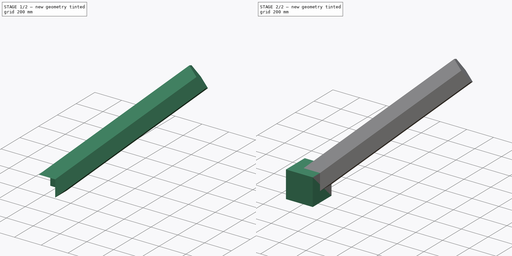
[diagram: build sequence overview — one tinted view per stage of 2, left to right]
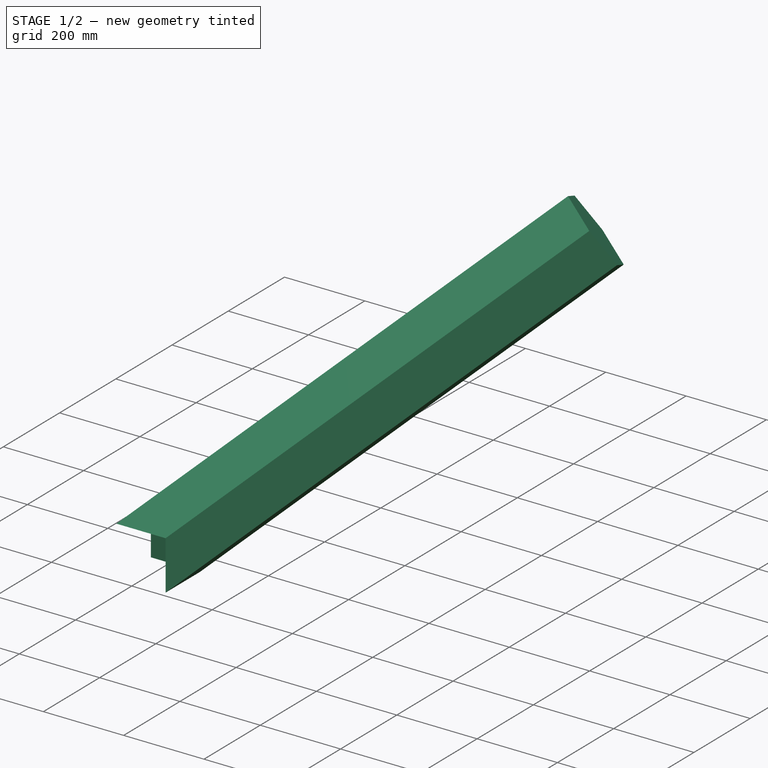
[diagram: stage 1 of 2 — iso view after this stage's code; geometry added in this stage tinted green]
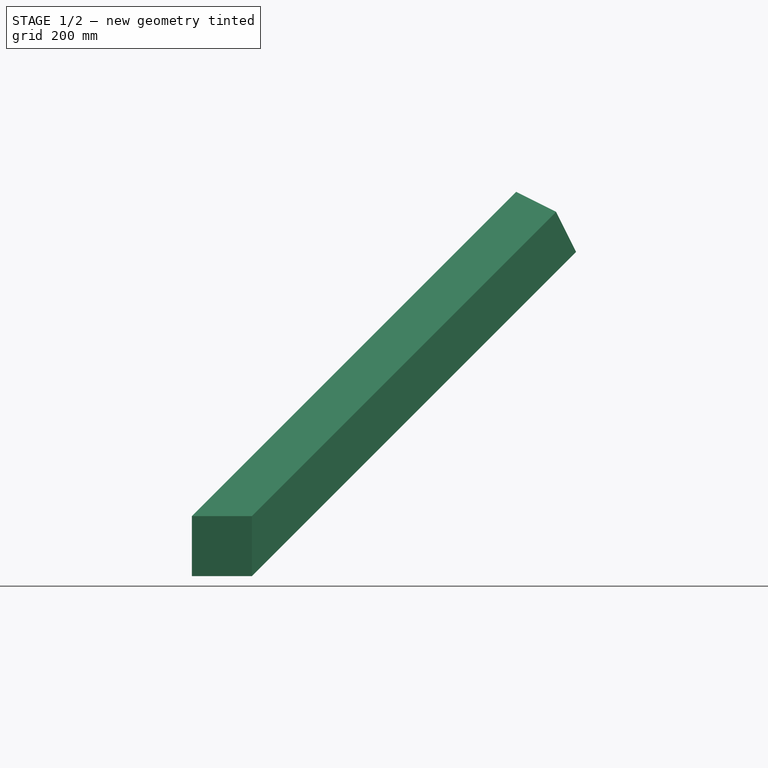
[diagram: stage 1 of 2 — front view after this stage's code; geometry added in this stage tinted green]
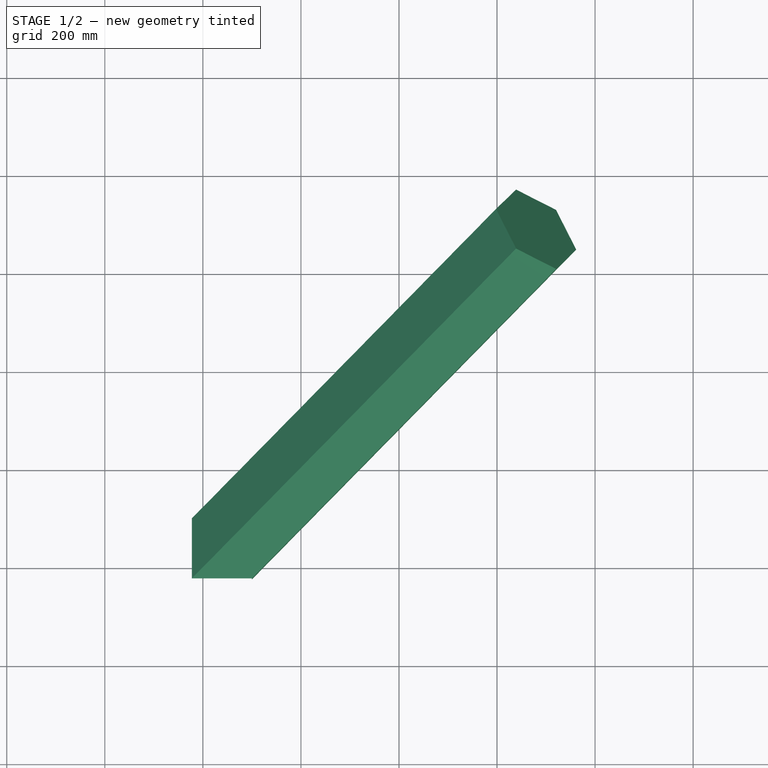
[diagram: stage 1 of 2 — top view after this stage's code; geometry added in this stage tinted green]
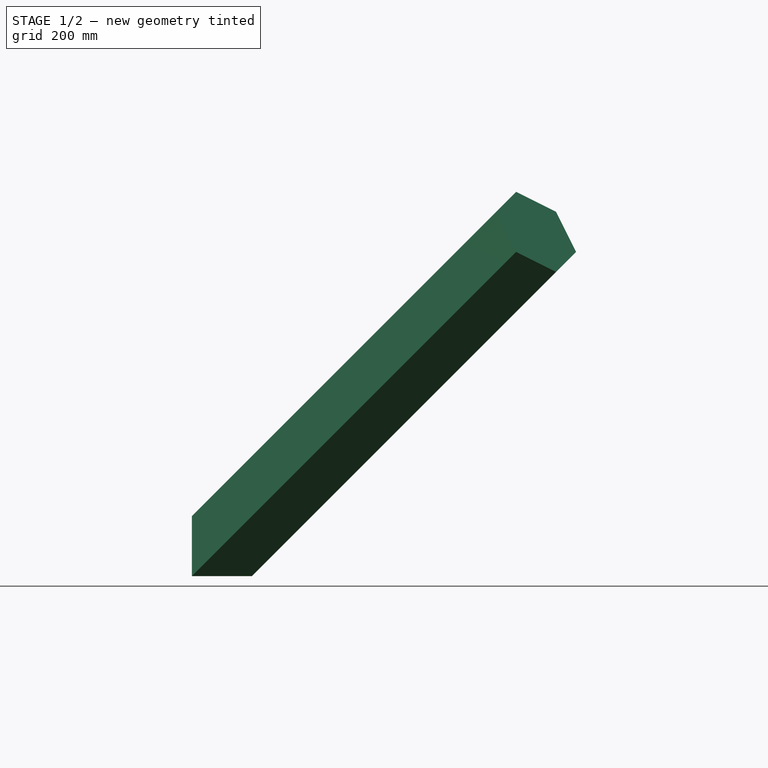
[diagram: stage 1 of 2 — right view after this stage's code; geometry added in this stage tinted green]
FCSTD DOCUMENT  (FreeCAD 0.21R33694 (Git))
Label: Tresca
License: All rights reserved
LicenseURL: http://en.wikipedia.org/wiki/All_rights_reserved
objects: Part::FeaturePython×6, Part::Feature×4, Part::Plane×3, Sketcher::SketchObject×2, Part::Box×2, Part::Cut×1
note: 18 computed .brp shape members not serialized (recipe doc carries the construction recipe); baked Part::Feature solids carry a one-line shape summary decoded from their .brp

FEATURE [Part::Feature] Solid001
  shape: bbox 886.7 x 886.7 x 864.3 mm, 8 faces (baked)
FEATURE [Part::Box] Box001  label="Cube001"
  AttacherType = Attacher::AttachEngine3D
  Height = 200
  Length = 200
  Placement = pos=(-500,-500,-500) rot=(0,0,1;0rad)
  Width = 200
FEATURE [Part::Cut] Cut
  Base = -> Solid001
  Tool = -> Box001
FEATURE [Part::FeaturePython] Facebinder  # WARN: FeaturePython — macro-defined, semantics opaque (R4)
  Area = 15000
  Extrusion = 0
  Faces = -> [Cut]
  Placement = pos=(0,0,-122.5) rot=(0,0,1;0rad)
  RemoveSplitter = false
  Sew = false
FEATURE [Part::FeaturePython] Facebinder001  # WARN: FeaturePython — macro-defined, semantics opaque (R4)
  Area = 15000
  Extrusion = 0
  Faces = -> [Cut]
  Placement = pos=(0,-122.5,0) rot=(0,0,1;0rad)
  RemoveSplitter = false
  Sew = false
FEATURE [Part::FeaturePython] Facebinder002  # WARN: FeaturePython — macro-defined, semantics opaque (R4)
  Area = 15000
  Extrusion = 0
  Faces = -> [Cut]
  Placement = pos=(-122.5,0,0) rot=(0,0,1;0rad)
  RemoveSplitter = false
  Sew = false
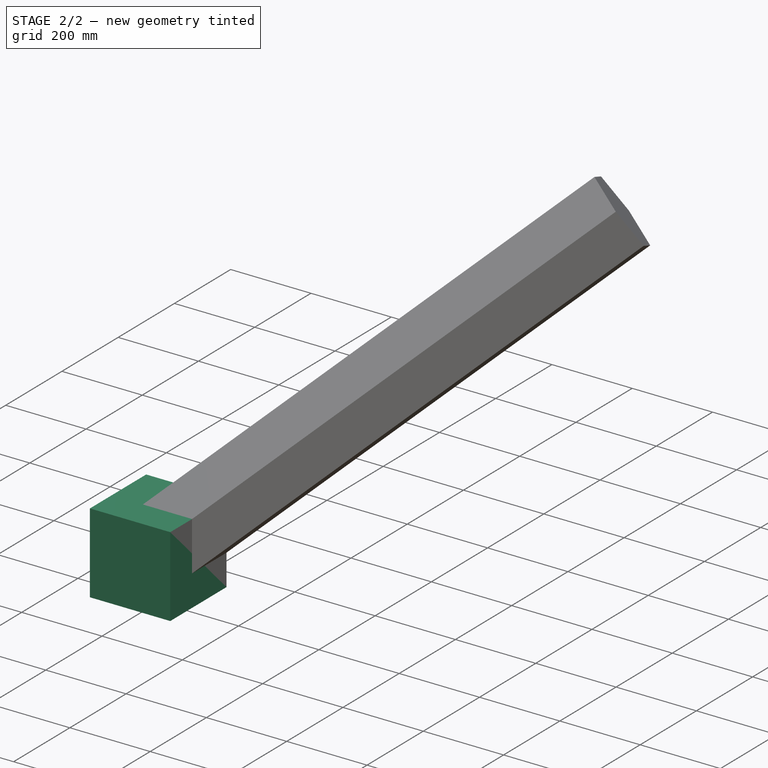
[diagram: stage 2 of 2 — iso view after this stage's code; geometry added in this stage tinted green]
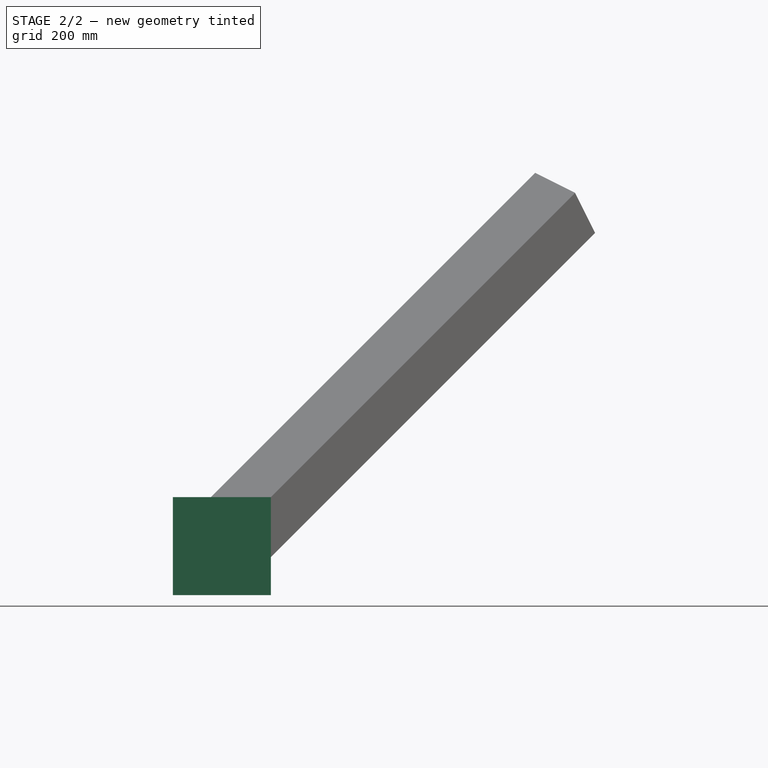
[diagram: stage 2 of 2 — front view after this stage's code; geometry added in this stage tinted green]
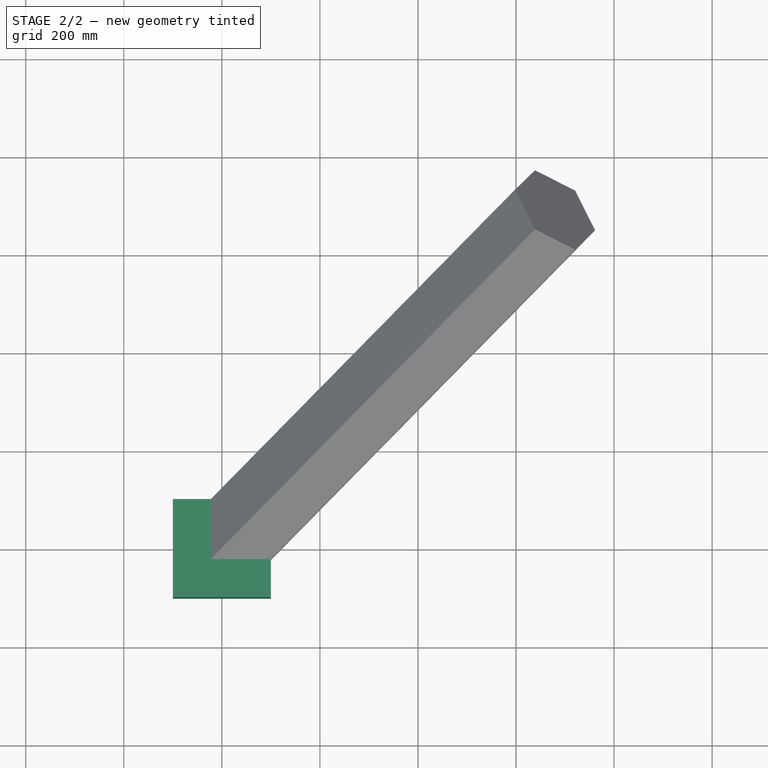
[diagram: stage 2 of 2 — top view after this stage's code; geometry added in this stage tinted green]
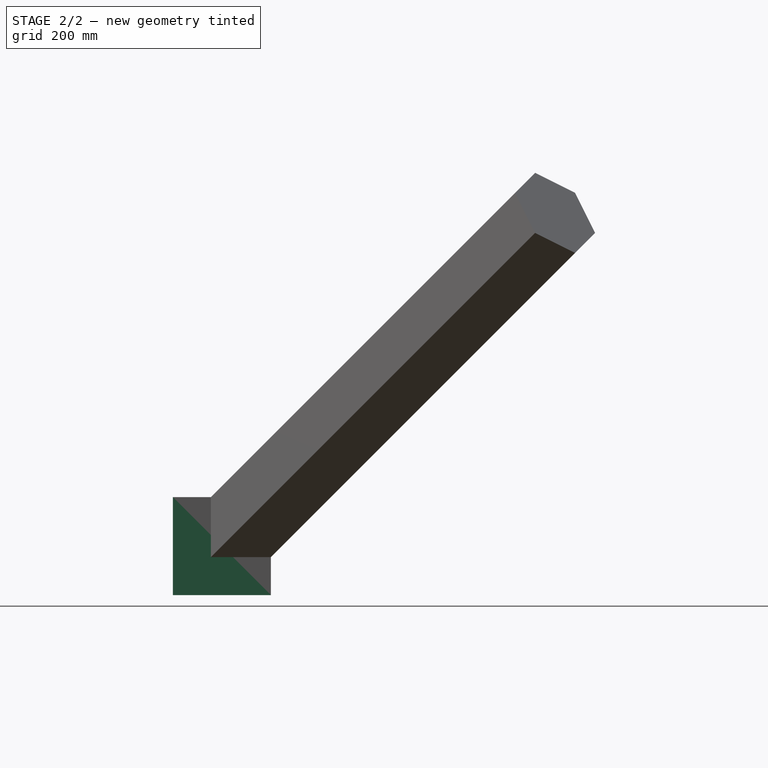
[diagram: stage 2 of 2 — right view after this stage's code; geometry added in this stage tinted green]
FEATURE [Part::FeaturePython] Point  # WARN: FeaturePython — macro-defined, semantics opaque (R4)
  Placement = pos=(100,0,0) rot=(0,0,1;0rad)
  X = 100
  Y = 0
  Z = 0
FEATURE [Part::FeaturePython] Point001  # WARN: FeaturePython — macro-defined, semantics opaque (R4)
  Placement = pos=(0,100,0) rot=(0,0,1;0rad)
  X = 0
  Y = 100
  Z = 0
FEATURE [Part::FeaturePython] Point002  # WARN: FeaturePython — macro-defined, semantics opaque (R4)
  Placement = pos=(0,0,100) rot=(0,0,1;0rad)
  X = 0
  Y = 0
  Z = 100
FEATURE [Part::Feature] Face
  shape: bbox 165 x 165 x 110 mm, 1 faces, 0 solids (baked)
FEATURE [Sketcher::SketchObject] Sketch
  FullyConstrained = true
  MapMode = 45
  Placement = pos=(33.3333,33.3333,33.3333) rot=(0.187053,0.451587,0.872399;2.44807rad)
  Support = -> [Face]
  sketch-geometry (7):
    g0: LineSegment StartX=0 StartY=100 StartZ=0 EndX=-86.6025 EndY=50 EndZ=0
    g1: LineSegment StartX=-86.6025 StartY=50 StartZ=0 EndX=-86.6025 EndY=-50 EndZ=0
    g2: LineSegment StartX=-86.6025 StartY=-50 StartZ=0 EndX=0 EndY=-100 EndZ=0
    g3: LineSegment StartX=0 StartY=-100 StartZ=0 EndX=86.6025 EndY=-50 EndZ=0
    g4: LineSegment StartX=86.6025 StartY=-50 StartZ=0 EndX=86.6025 EndY=50 EndZ=0
    g5: LineSegment StartX=86.6025 StartY=50 StartZ=0 EndX=0 EndY=100 EndZ=0
    g6: Circle CenterX=0 CenterY=0 CenterZ=0 NormalX=0 NormalY=0 NormalZ=1 AngleXU=0 Radius=100
  constraints (16):
    c: Coincident(g0,g1)
    c: Coincident(g1,g2)
    c: Coincident(g2,g3)
    c: Coincident(g3,g4)
    c: Coincident(g4,g5)
    c: Coincident(g5,g0)
    c: Equal(g0, g1-g5) x5
    c: PointOnObject(g0,g6)
    c: PointOnObject(g1,g6)
    c: PointOnObject(g2,g6)
    c: PointOnObject(g3,g6)
    c: PointOnObject(g4,g6)
    c: PointOnObject(g5,g6)
    c: Coincident(g6,g-1)
    c: PointOnObject(g5,g-2)
    c: Radius(g6) = 100
FEATURE [Sketcher::SketchObject] Sketch001
  FullyConstrained = true
  MapMode = 45
  Placement = pos=(33.3333,33.3333,33.3333) rot=(0.187053,0.451587,0.872399;2.44807rad)
  Support = -> [Face]
  sketch-geometry (1):
    g0: Circle CenterX=0 CenterY=0 CenterZ=0 NormalX=0 NormalY=0 NormalZ=1 AngleXU=0 Radius=200
  constraints (2):
    c: Coincident(g0,g-1)
    c: Radius(g0) = 200
FEATURE [Part::Feature] Face001
  Placement = pos=(100,100,100) rot=(0,0,1;0rad)
  shape: bbox 503 x 417.4 x 455.9 mm, 1 faces, 0 solids (baked)
FEATURE [Part::Plane] Plane001
  AttacherType = Attacher::AttachEngine3D
  Length = 500
  Placement = pos=(-350,-350,-350) rot=(0,0,1;0rad)
  Width = 500
FEATURE [Part::Plane] Plane002
  AttacherType = Attacher::AttachEngine3D
  Length = 500
  Placement = pos=(-350,-350,150) rot=(0,1,0;1.5708rad)
  Width = 500
FEATURE [Part::Plane] Plane003
  AttacherType = Attacher::AttachEngine3D
  Length = 500
  Placement = pos=(-350,-350,-350) rot=(1,0,0;1.5708rad)
  Width = 500
FEATURE [Part::Feature] Solid
  shape: bbox 886.7 x 886.7 x 864.3 mm, 8 faces (baked)
FEATURE [Part::Box] Box  label="Cube"
  AttacherType = Attacher::AttachEngine3D
  Height = 200
  Length = 200
  Placement = pos=(-500,-500,-500) rot=(0,0,1;0rad)
  Width = 200
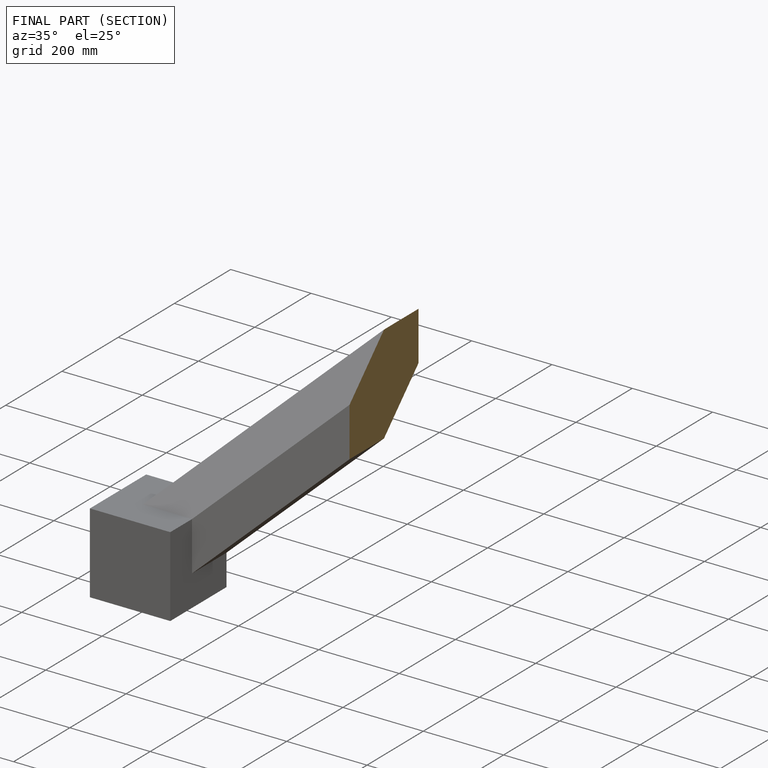
[diagram: finished part — half-section view (interior)]
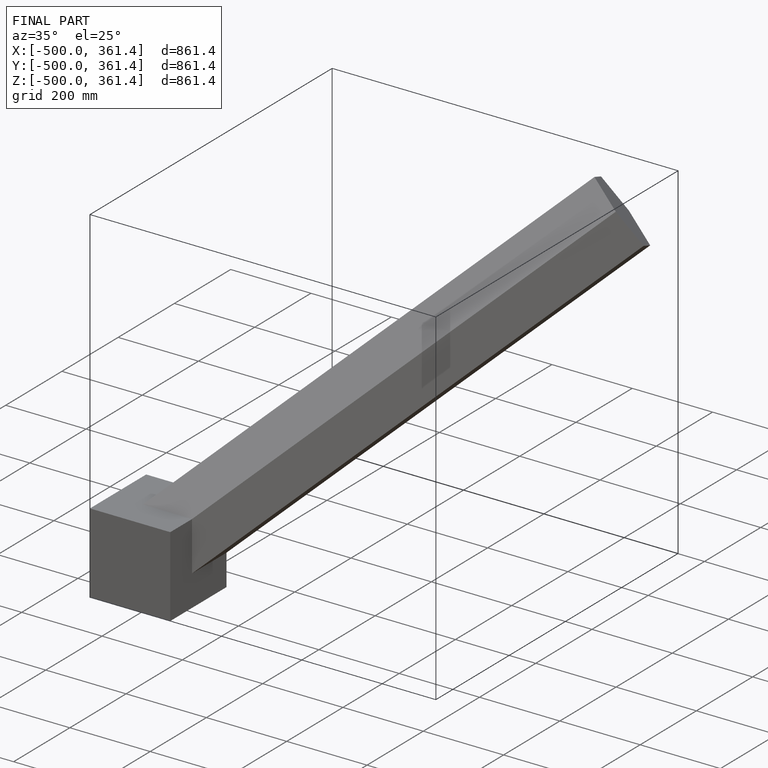
[diagram: finished part — iso view with bounding-box wireframe]
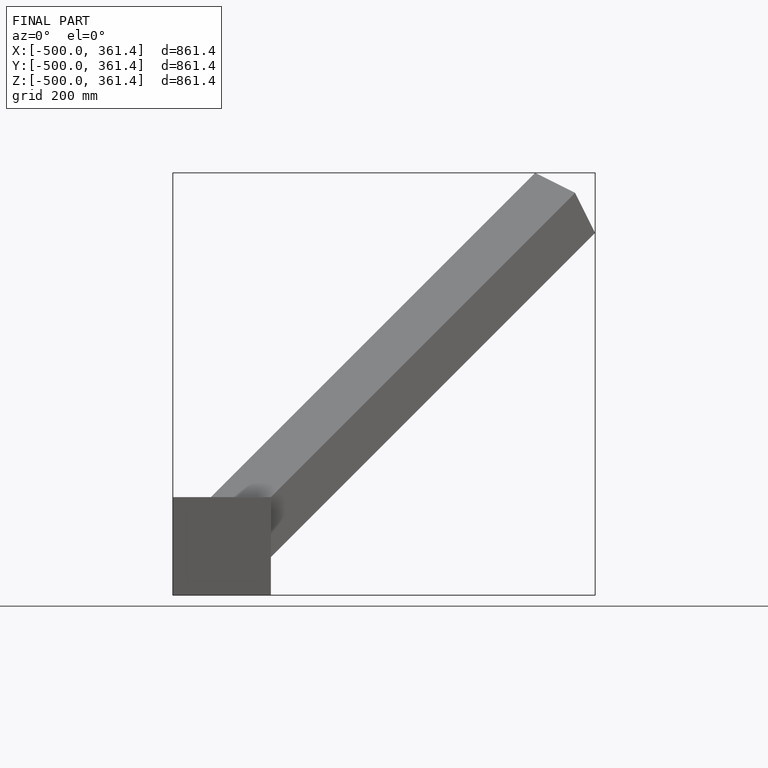
[diagram: finished part — front view with bounding-box wireframe]
